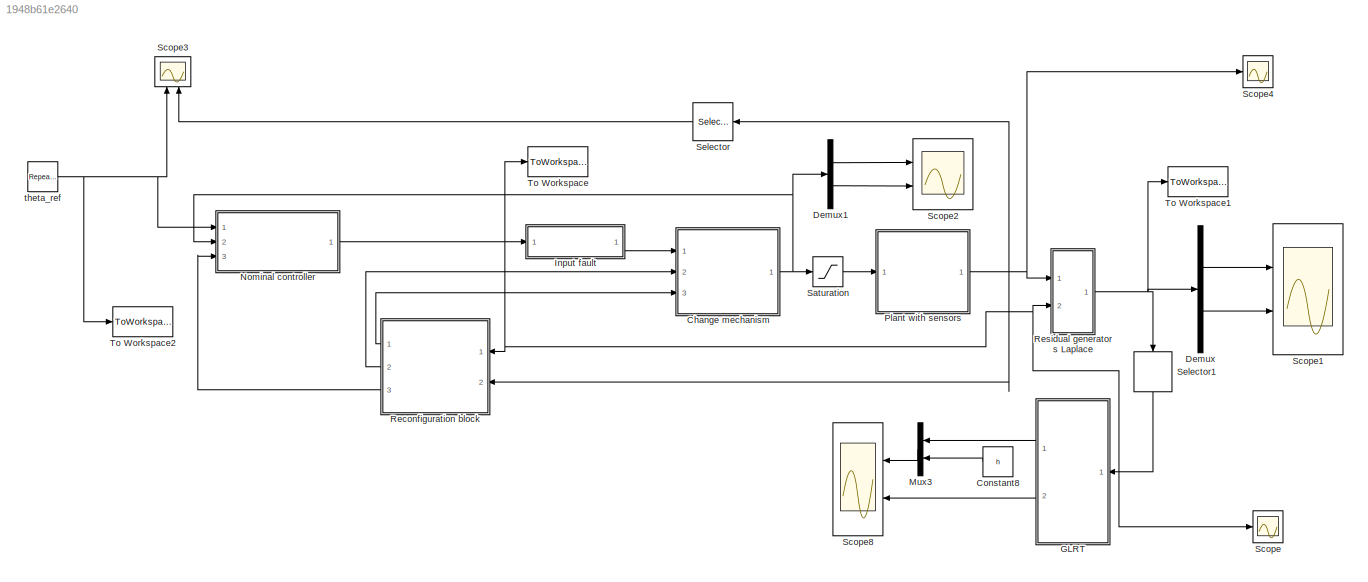
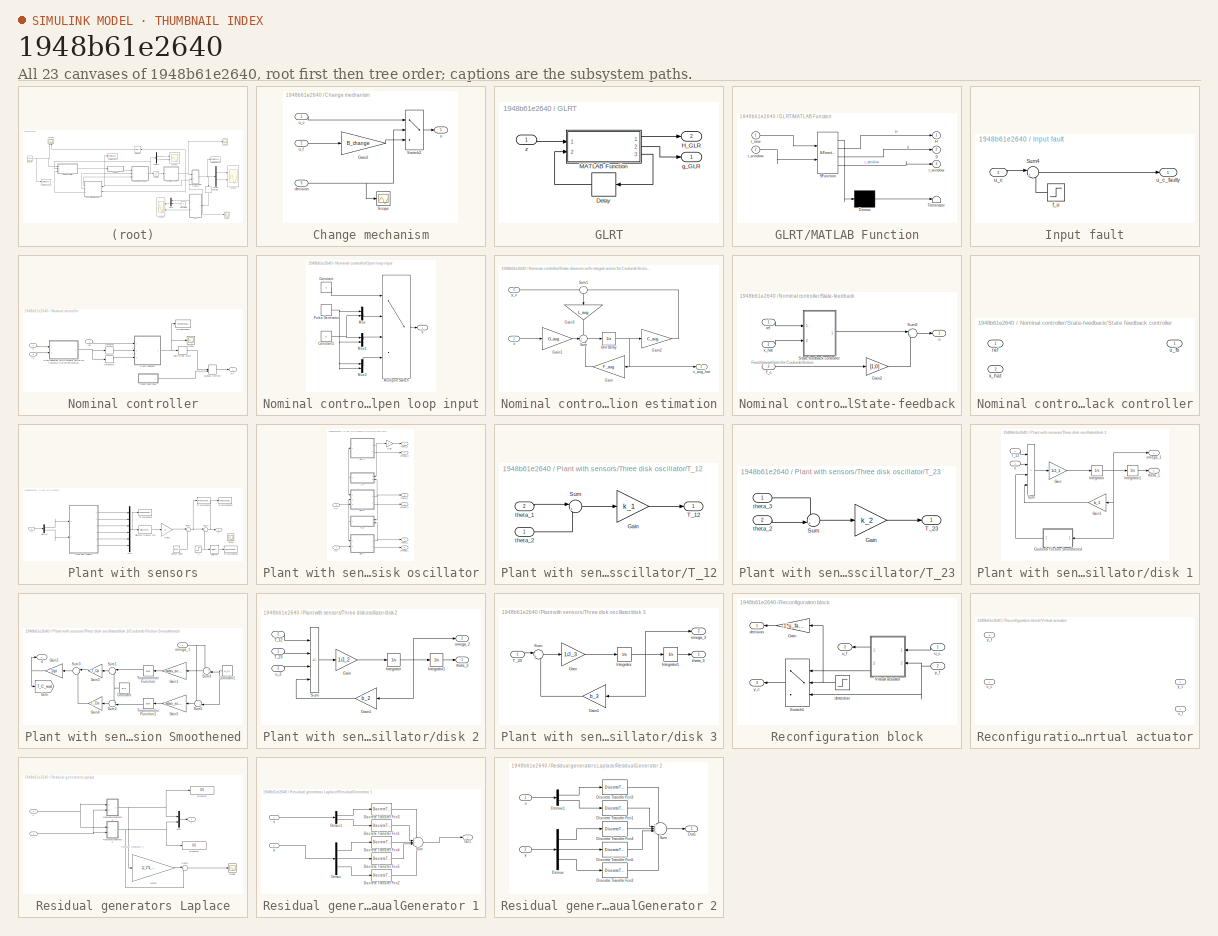
[diagram: thumbnail index - all 23 canvases of the model, root first then tree order]
MODEL slx_1948b61e2640
KIND model
CONFIG AbsTol = auto
CONFIG EnableMultiTasking = off
CONFIG FixedStep = auto
CONFIG MaxStep = auto
CONFIG MinStep = auto
CONFIG RelTol = 1e-8
CONFIG SampleTimeConstraint = Unconstrained
CONFIG Solver = VariableStepAuto
CONFIG SolverName = VariableStepAuto
CONFIG StartTime = 0.0
CONFIG StopTime = simTime
BLOCK [SubSystem] Change mechanism
  Ports = [3, 1]
  RequestExecContextInheritance = off
BLOCK [Gain] Change mechanism/Gain2
  Gain = B_change
  Multiplication = Matrix(K*u) (u vector)
BLOCK [Scope] Change mechanism/Scope
  Floating = off
  NumInputPorts = 1
  Ports = [1]
  ScopeSpecificationString = Simulink.scopes.TimeScopeBlockCfg('CurrentConfiguration', extmgr.ConfigurationSet(extmgr.Configuration('Core','General UI',true),extmgr.Configuration('Core','Source UI',true),extmgr.Configuration('Sources','WiredSimulink',true,'DataLoggingVariableName','ScopeData2'),extmgr.Configuration('Visuals','Time Domain',true,'SerializedDisplays',{struct('MinYLimReal','-1.00000','MaxYLimReal','1.00000','YLab...<+1396ch>
BLOCK [Switch] Change mechanism/Switch2
  InputSameDT = off
  OutDataTypeStr = double
  SaturateOnIntegerOverflow = off
BLOCK [Inport] Change mechanism/decision
  Port = 3
BLOCK [Outport] Change mechanism/u
BLOCK [Inport] Change mechanism/u_c
BLOCK [Inport] Change mechanism/u_f
  Port = 2
BLOCK [Constant] Constant8
  Value = h
BLOCK [Demux] Demux
  Outputs = 2
  Ports = [1, 2]
BLOCK [Demux] Demux1
  Outputs = 2
  Ports = [1, 2]
BLOCK [SubSystem] GLRT
  Ports = [1, 2]
  RequestExecContextInheritance = off
BLOCK [Delay] GLRT/Delay
  DelayLength = 1
  InitialCondition = r_window
  InputPortMap = u0
  NameLocation = top
  Ports = [1, 1]
  SampleTime = T_s
BLOCK [Outport] GLRT/H_GLR
  Port = 2
  VectorParamsAs1DForOutWhenUnconnected = off
BLOCK [SubSystem] GLRT/MATLAB Function
  ErrorFcn = Stateflow.Translate.translate
  PermitHierarchicalResolution = ExplicitOnly
  Ports = [2, 3]
  RequestExecContextInheritance = off
  SFBlockType = MATLAB Function
  TreatAsAtomicUnit = on
BLOCK [Demux] GLRT/MATLAB Function/ Demux 
  Outputs = 1
  Ports = [1, 1]
BLOCK [S-Function] GLRT/MATLAB Function/ SFunction 
  EnableBusSupport = on
  FunctionName = sf_sfun
  PortCounts = [2 4]
  Ports = [2, 4]
  SFcnIsStateOwnerBlock = off
  SFunctionDeploymentMode = off
  Tag = Stateflow S-Function 2
BLOCK [Terminator] GLRT/MATLAB Function/ Terminator 
BLOCK [Outport] GLRT/MATLAB Function/H
BLOCK [Outport] GLRT/MATLAB Function/g
  Port = 2
BLOCK [Inport] GLRT/MATLAB Function/r_new
BLOCK [Outport] GLRT/MATLAB Function/r_window
  Port = 3
BLOCK [Inport] GLRT/MATLAB Function/r_window 
  Port = 2
BLOCK [Outport] GLRT/g_GLR
  VectorParamsAs1DForOutWhenUnconnected = off
BLOCK [Inport] GLRT/z
BLOCK [SubSystem] Input fault
  NameLocation = top
  Ports = [1, 1]
  RequestExecContextInheritance = off
BLOCK [Sum] Input fault/Sum4
  Inputs = |++
  Ports = [2, 1]
BLOCK [Step] Input fault/f_u
  After = f_u
  NameLocation = top
  SampleTime = 0
  Time = f_u_time
BLOCK [Inport] Input fault/u_c
BLOCK [Outport] Input fault/u_c_faulty
BLOCK [Mux] Mux3
  DisplayOption = bar
  Inputs = 2
  Ports = [2, 1]
BLOCK [SubSystem] Nominal controller
  Ports = [3, 1]
  RequestExecContextInheritance = off
BLOCK [ManualSwitch] Nominal controller/Manual Switch
  CurrentSetting = 0
BLOCK [SubSystem] Nominal controller/Open loop input
  Ports = [0, 1]
  RequestExecContextInheritance = off
BLOCK [Constant] Nominal controller/Open loop input/Constant
  Value = 3
BLOCK [Constant] Nominal controller/Open loop input/Constant1
  Value = 0
BLOCK [MultiPortSwitch] Nominal controller/Open loop input/Multiport Switch
  InputSameDT = off
  Ports = [4, 1]
  SaturateOnIntegerOverflow = off
BLOCK [Mux] Nominal controller/Open loop input/Mux
  DisplayOption = bar
  Inputs = 2
  Ports = [2, 1]
BLOCK [Mux] Nominal controller/Open loop input/Mux1
  DisplayOption = bar
  Inputs = 2
  Ports = [2, 1]
BLOCK [Mux] Nominal controller/Open loop input/Mux2
  DisplayOption = bar
  Inputs = 2
  Ports = [2, 1]
BLOCK [DiscretePulseGenerator] Nominal controller/Open loop input/Pulse Generator
  Period = 10
  Ports = [0, 1]
  PulseType = Time based
  PulseWidth = 5
BLOCK [Outport] Nominal controller/Open loop input/u
BLOCK [Scope] Nominal controller/Scope
  Floating = off
  NumInputPorts = 1
  Ports = [1]
  ScopeSpecificationString = Simulink.scopes.TimeScopeBlockCfg('CurrentConfiguration', extmgr.ConfigurationSet(extmgr.Configuration('Core','General UI',true),extmgr.Configuration('Core','Source UI',true),extmgr.Configuration('Sources','WiredSimulink',true,'DataLoggingVariableName','ScopeData1'),extmgr.Configuration('Visuals','Time Domain',true,'SerializedDisplays',{struct('MinYLimReal','-1.51308','MaxYLimReal','1.51292','YLab...<+1479ch>
BLOCK [Selector] Nominal controller/Selector
  IndexOptions = Index vector (dialog)
  Indices = [1:6]
  InputPortWidth = 7
  OutputSizes = 1
  Ports = [1, 1]
BLOCK [Selector] Nominal controller/Selector1
  IndexOptions = Index vector (dialog)
  Indices = [7]
  InputPortWidth = 7
  OutputSizes = 1
  Ports = [1, 1]
BLOCK [SubSystem] Nominal controller/State observer with integral action for Coulomb friction estimation
  Ports = [2, 1]
  RequestExecContextInheritance = off
BLOCK [Gain] Nominal controller/State observer with integral action for Coulomb friction estimation/Gain
  Gain = F_aug
  Multiplication = Matrix(K*u) (u vector)
BLOCK [Gain] Nominal controller/State observer with integral action for Coulomb friction estimation/Gain1
  Gain = G_aug
  Multiplication = Matrix(K*u) (u vector)
BLOCK [Gain] Nominal controller/State observer with integral action for Coulomb friction estimation/Gain2
  Gain = C_aug
  Multiplication = Matrix(K*u) (u vector)
BLOCK [Gain] Nominal controller/State observer with integral action for Coulomb friction estimation/Gain3
  Gain = L_aug
  Multiplication = Matrix(K*u) (u vector)
  NameLocation = left
BLOCK [Sum] Nominal controller/State observer with integral action for Coulomb friction estimation/Sum
  Inputs = +++
  Ports = [3, 1]
BLOCK [Sum] Nominal controller/State observer with integral action for Coulomb friction estimation/Sum1
  Inputs = +-
  NameLocation = left
  Ports = [2, 1]
BLOCK [UnitDelay] Nominal controller/State observer with integral action for Coulomb friction estimation/Unit Delay
  HasFrameUpgradeWarning = on
  SampleTime = T_s
BLOCK [Inport] Nominal controller/State observer with integral action for Coulomb friction estimation/u
BLOCK [Outport] Nominal controller/State observer with integral action for Coulomb friction estimation/x_aug_hat
  VectorParamsAs1DForOutWhenUnconnected = off
BLOCK [Inport] Nominal controller/State observer with integral action for Coulomb friction estimation/y_c
  Port = 2
BLOCK [SubSystem] Nominal controller/State-feedback
  Ports = [3, 1]
  RequestExecContextInheritance = off
BLOCK [Gain] Nominal controller/State-feedback/Gain2
  Gain = [1;0]
  NameLocation = top
BLOCK [SubSystem] Nominal controller/State-feedback/State feedback controller
  Ports = [2, 1]
  RequestExecContextInheritance = off
BLOCK [Inport] Nominal controller/State-feedback/State feedback controller/ref
BLOCK [Outport] Nominal controller/State-feedback/State feedback controller/u_fb
BLOCK [Inport] Nominal controller/State-feedback/State feedback controller/x_hat
  Port = 2
BLOCK [Sum] Nominal controller/State-feedback/Sum2
  Inputs = |+-
  Ports = [2, 1]
BLOCK [Inport] Nominal controller/State-feedback/T_c
  Port = 3
BLOCK [Inport] Nominal controller/State-feedback/ref
BLOCK [Outport] Nominal controller/State-feedback/u
  VectorParamsAs1DForOutWhenUnconnected = off
BLOCK [Inport] Nominal controller/State-feedback/x_hat
  Port = 2
BLOCK [ToWorkspace] Nominal controller/To Workspace
  FixptAsFi = on
  MaxDataPoints = inf
  Ports = [1]
  SampleTime = T_s
  SaveFormat = Timeseries
  VariableName = u
BLOCK [ZeroOrderHold] Nominal controller/Zero-Order Hold
  SampleTime = T_s
BLOCK [Inport] Nominal controller/ref
BLOCK [Inport] Nominal controller/u
  Port = 2
BLOCK [Outport] Nominal controller/u_c
BLOCK [Inport] Nominal controller/y_c
  Port = 3
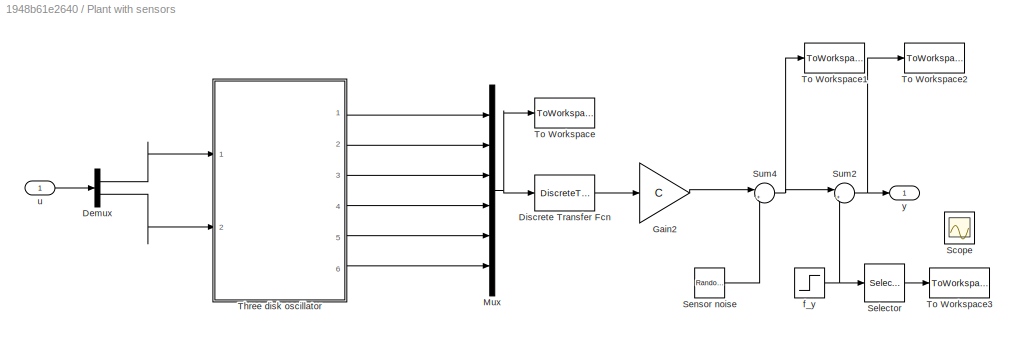
BLOCK [SubSystem] Plant with sensors
  Ports = [1, 1]
  RequestExecContextInheritance = off
BLOCK [Demux] Plant with sensors/Demux
  Outputs = 2
  Ports = [1, 2]
BLOCK [DiscreteTransferFcn] Plant with sensors/Discrete Transfer Fcn
  Denominator = [1]
  InputPortMap = u0
  Ports = [1, 1]
  SampleTime = T_s
BLOCK [Gain] Plant with sensors/Gain2
  Gain = C
  Multiplication = Matrix(K*u) (u vector)
BLOCK [Mux] Plant with sensors/Mux
  DisplayOption = bar
  Inputs = 6
  Ports = [6, 1]
BLOCK [Scope] Plant with sensors/Scope
  Floating = off
  NumInputPorts = 1
  Ports = [1]
  ScopeSpecificationString = Simulink.scopes.TimeScopeBlockCfg('CurrentConfiguration', extmgr.ConfigurationSet(extmgr.Configuration('Core','General UI',true),extmgr.Configuration('Core','Source UI',true),extmgr.Configuration('Sources','WiredSimulink',true,'DataLoggingVariableName','ScopeData1'),extmgr.Configuration('Visuals','Time Domain',true,'SerializedDisplays',{struct('MinYLimReal','-1.00000','MaxYLimReal','1.00000','YLab...<+1403ch>
BLOCK [Selector] Plant with sensors/Selector
  IndexOptions = Index vector (dialog)
  Indices = [2]
  InputPortWidth = 3
  OutputSizes = 1
  Ports = [1, 1]
BLOCK [RandomNumber] Plant with sensors/Sensor noise
  Mean = zeros(3,1)
  SampleTime = T_s
  Variance = diag(sigma_meas^2)
BLOCK [Sum] Plant with sensors/Sum2
  Inputs = |++
  Ports = [2, 1]
BLOCK [Sum] Plant with sensors/Sum4
  Inputs = |++
  Ports = [2, 1]
BLOCK [SubSystem] Plant with sensors/Three disk oscillator
  Ports = [2, 6]
  RequestExecContextInheritance = off
BLOCK [Gain] Plant with sensors/Three disk oscillator/Gain
BLOCK [SubSystem] Plant with sensors/Three disk oscillator/T_12
  Ports = [2, 1]
  RequestExecContextInheritance = off
BLOCK [Gain] Plant with sensors/Three disk oscillator/T_12/Gain
  Gain = k_1
BLOCK [Sum] Plant with sensors/Three disk oscillator/T_12/Sum
  Inputs = |+-
  Ports = [2, 1]
BLOCK [Outport] Plant with sensors/Three disk oscillator/T_12/T_12
  VectorParamsAs1DForOutWhenUnconnected = off
BLOCK [Inport] Plant with sensors/Three disk oscillator/T_12/theta_1
  Port = 2
BLOCK [Inport] Plant with sensors/Three disk oscillator/T_12/theta_2
BLOCK [SubSystem] Plant with sensors/Three disk oscillator/T_23
  Ports = [2, 1]
  RequestExecContextInheritance = off
BLOCK [Gain] Plant with sensors/Three disk oscillator/T_23/Gain
  Gain = k_2
BLOCK [Sum] Plant with sensors/Three disk oscillator/T_23/Sum
  Inputs = -+|
  Ports = [2, 1]
BLOCK [Outport] Plant with sensors/Three disk oscillator/T_23/T_23
  VectorParamsAs1DForOutWhenUnconnected = off
BLOCK [Inport] Plant with sensors/Three disk oscillator/T_23/theta_2
  Port = 2
BLOCK [Inport] Plant with sensors/Three disk oscillator/T_23/theta_3
BLOCK [SubSystem] Plant with sensors/Three disk oscillator/disk 1
  Ports = [2, 2]
  RequestExecContextInheritance = off
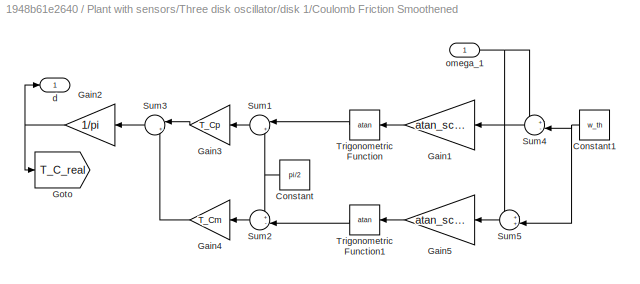
BLOCK [SubSystem] Plant with sensors/Three disk oscillator/disk 1/Coulomb Friction Smoothened
  Ports = [1, 1]
  RequestExecContextInheritance = off
BLOCK [Constant] Plant with sensors/Three disk oscillator/disk 1/Coulomb Friction Smoothened/Constant
  Value = pi/2
BLOCK [Constant] Plant with sensors/Three disk oscillator/disk 1/Coulomb Friction Smoothened/Constant1
  Value = w_th
BLOCK [Gain] Plant with sensors/Three disk oscillator/disk 1/Coulomb Friction Smoothened/Gain1
  Gain = atan_scale
BLOCK [Gain] Plant with sensors/Three disk oscillator/disk 1/Coulomb Friction Smoothened/Gain2
  Gain = 1/pi
BLOCK [Gain] Plant with sensors/Three disk oscillator/disk 1/Coulomb Friction Smoothened/Gain3
  Gain = T_Cp
BLOCK [Gain] Plant with sensors/Three disk oscillator/disk 1/Coulomb Friction Smoothened/Gain4
  Gain = T_Cm
BLOCK [Gain] Plant with sensors/Three disk oscillator/disk 1/Coulomb Friction Smoothened/Gain5
  Gain = atan_scale
BLOCK [Goto] Plant with sensors/Three disk oscillator/disk 1/Coulomb Friction Smoothened/Goto
  GotoTag = T_C_real
  TagVisibility = global
BLOCK [Sum] Plant with sensors/Three disk oscillator/disk 1/Coulomb Friction Smoothened/Sum1
  Inputs = |++
  Ports = [2, 1]
BLOCK [Sum] Plant with sensors/Three disk oscillator/disk 1/Coulomb Friction Smoothened/Sum2
  Inputs = +-|
  Ports = [2, 1]
BLOCK [Sum] Plant with sensors/Three disk oscillator/disk 1/Coulomb Friction Smoothened/Sum3
  Inputs = |+-
  Ports = [2, 1]
BLOCK [Sum] Plant with sensors/Three disk oscillator/disk 1/Coulomb Friction Smoothened/Sum4
  Inputs = +-|
  Ports = [2, 1]
BLOCK [Sum] Plant with sensors/Three disk oscillator/disk 1/Coulomb Friction Smoothened/Sum5
  Inputs = ++|
  Ports = [2, 1]
BLOCK [Trigonometry] Plant with sensors/Three disk oscillator/disk 1/Coulomb Friction Smoothened/Trigonometric Function
  Operator = atan
  Ports = [1, 1]
BLOCK [Trigonometry] Plant with sensors/Three disk oscillator/disk 1/Coulomb Friction Smoothened/Trigonometric Function1
  Operator = atan
  Ports = [1, 1]
BLOCK [Outport] Plant with sensors/Three disk oscillator/disk 1/Coulomb Friction Smoothened/d
  VectorParamsAs1DForOutWhenUnconnected = off
BLOCK [Inport] Plant with sensors/Three disk oscillator/disk 1/Coulomb Friction Smoothened/omega_1
BLOCK [Gain] Plant with sensors/Three disk oscillator/disk 1/Gain
  Gain = 1/J_1
BLOCK [Gain] Plant with sensors/Three disk oscillator/disk 1/Gain1
  Gain = b_1
BLOCK [Integrator] Plant with sensors/Three disk oscillator/disk 1/Integrator
  InitialCondition = x_0(2)
  Ports = [1, 1]
BLOCK [Integrator] Plant with sensors/Three disk oscillator/disk 1/Integrator1
  InitialCondition = x_0(1)
  Ports = [1, 1]
BLOCK [Sum] Plant with sensors/Three disk oscillator/disk 1/Sum
  IconShape = rectangular
  Inputs = -+--
  Ports = [4, 1]
BLOCK [Inport] Plant with sensors/Three disk oscillator/disk 1/T_12
BLOCK [Outport] Plant with sensors/Three disk oscillator/disk 1/omega_1
  Port = 2
  VectorParamsAs1DForOutWhenUnconnected = off
BLOCK [Outport] Plant with sensors/Three disk oscillator/disk 1/theta_1
  VectorParamsAs1DForOutWhenUnconnected = off
BLOCK [Inport] Plant with sensors/Three disk oscillator/disk 1/u
  Port = 2
BLOCK [SubSystem] Plant with sensors/Three disk oscillator/disk 2
  Ports = [3, 2]
  RequestExecContextInheritance = off
BLOCK [Gain] Plant with sensors/Three disk oscillator/disk 2/Gain
  Gain = 1/J_2
BLOCK [Gain] Plant with sensors/Three disk oscillator/disk 2/Gain1
  Gain = b_2
BLOCK [Integrator] Plant with sensors/Three disk oscillator/disk 2/Integrator
  InitialCondition = x_0(4)
  Ports = [1, 1]
BLOCK [Integrator] Plant with sensors/Three disk oscillator/disk 2/Integrator1
  InitialCondition = x_0(3)
  Ports = [1, 1]
BLOCK [Sum] Plant with sensors/Three disk oscillator/disk 2/Sum
  IconShape = rectangular
  Inputs = +-+-
  Ports = [4, 1]
BLOCK [Inport] Plant with sensors/Three disk oscillator/disk 2/T_12
  Port = 2
BLOCK [Inport] Plant with sensors/Three disk oscillator/disk 2/T_23
BLOCK [Outport] Plant with sensors/Three disk oscillator/disk 2/omega_2
  Port = 2
  VectorParamsAs1DForOutWhenUnconnected = off
BLOCK [Outport] Plant with sensors/Three disk oscillator/disk 2/theta_2
  VectorParamsAs1DForOutWhenUnconnected = off
BLOCK [Inport] Plant with sensors/Three disk oscillator/disk 2/u_2
  Port = 3
BLOCK [SubSystem] Plant with sensors/Three disk oscillator/disk 3
  Ports = [1, 2]
  RequestExecContextInheritance = off
BLOCK [Gain] Plant with sensors/Three disk oscillator/disk 3/Gain
  Gain = 1/J_3
BLOCK [Gain] Plant with sensors/Three disk oscillator/disk 3/Gain1
  Gain = b_3
BLOCK [Integrator] Plant with sensors/Three disk oscillator/disk 3/Integrator
  InitialCondition = x_0(6)
  Ports = [1, 1]
BLOCK [Integrator] Plant with sensors/Three disk oscillator/disk 3/Integrator1
  InitialCondition = x_0(5)
  Ports = [1, 1]
BLOCK [Sum] Plant with sensors/Three disk oscillator/disk 3/Sum
  Inputs = |+-
  Ports = [2, 1]
BLOCK [Inport] Plant with sensors/Three disk oscillator/disk 3/T_23
BLOCK [Outport] Plant with sensors/Three disk oscillator/disk 3/omega_3
  Port = 2
  VectorParamsAs1DForOutWhenUnconnected = off
BLOCK [Outport] Plant with sensors/Three disk oscillator/disk 3/theta_3
  VectorParamsAs1DForOutWhenUnconnected = off
BLOCK [Outport] Plant with sensors/Three disk oscillator/omega_1
  Port = 2
  VectorParamsAs1DForOutWhenUnconnected = off
BLOCK [Outport] Plant with sensors/Three disk oscillator/omega_2
  Port = 4
  VectorParamsAs1DForOutWhenUnconnected = off
BLOCK [Outport] Plant with sensors/Three disk oscillator/omega_3
  Port = 6
  VectorParamsAs1DForOutWhenUnconnected = off
BLOCK [Outport] Plant with sensors/Three disk oscillator/theta_1
  VectorParamsAs1DForOutWhenUnconnected = off
BLOCK [Outport] Plant with sensors/Three disk oscillator/theta_2
  Port = 3
  VectorParamsAs1DForOutWhenUnconnected = off
BLOCK [Outport] Plant with sensors/Three disk oscillator/theta_3
  Port = 5
  VectorParamsAs1DForOutWhenUnconnected = off
BLOCK [Inport] Plant with sensors/Three disk oscillator/u_1
BLOCK [Inport] Plant with sensors/Three disk oscillator/u_2
  Port = 2
BLOCK [ToWorkspace] Plant with sensors/To Workspace
  FixptAsFi = on
  MaxDataPoints = inf
  Ports = [1]
  SampleTime = T_s
  SaveFormat = Timeseries
  VariableName = x_real
BLOCK [ToWorkspace] Plant with sensors/To Workspace1
  FixptAsFi = on
  MaxDataPoints = inf
  Ports = [1]
  SampleTime = T_s
  SaveFormat = Timeseries
  VariableName = y_real
BLOCK [ToWorkspace] Plant with sensors/To Workspace2
  FixptAsFi = on
  MaxDataPoints = inf
  Ports = [1]
  SampleTime = T_s
  SaveFormat = Timeseries
  VariableName = y_meas
BLOCK [ToWorkspace] Plant with sensors/To Workspace3
  FixptAsFi = on
  MaxDataPoints = inf
  Ports = [1]
  SampleTime = T_s
  SaveFormat = Timeseries
  VariableName = f_2
BLOCK [Step] Plant with sensors/f_y
  After = f_m
  Before = [0;0;0]
  SampleTime = 0
  Time = f_m_time
BLOCK [Inport] Plant with sensors/u
BLOCK [Outport] Plant with sensors/y
  VectorParamsAs1DForOutWhenUnconnected = off
BLOCK [SubSystem] Reconfiguration block
  Ports = [2, 3]
  RequestExecContextInheritance = off
BLOCK [Gain] Reconfiguration block/Gain
  Gain = -1*u_fault
BLOCK [Switch] Reconfiguration block/Switch1
  InputSameDT = off
  SaturateOnIntegerOverflow = off
  Threshold = 0.98
BLOCK [SubSystem] Reconfiguration block/Virtual actuator
  Ports = [2, 2]
  RequestExecContextInheritance = off
BLOCK [Inport] Reconfiguration block/Virtual actuator/u_c
BLOCK [Outport] Reconfiguration block/Virtual actuator/u_f
  VectorParamsAs1DForOutWhenUnconnected = off
BLOCK [Outport] Reconfiguration block/Virtual actuator/y_c
  Port = 2
  VectorParamsAs1DForOutWhenUnconnected = off
BLOCK [Inport] Reconfiguration block/Virtual actuator/y_f
  Port = 2
BLOCK [Outport] Reconfiguration block/decision
  VectorParamsAs1DForOutWhenUnconnected = off
BLOCK [Step] Reconfiguration block/detection
  SampleTime = T_s
  Time = detect_time
BLOCK [Inport] Reconfiguration block/u_c
BLOCK [Outport] Reconfiguration block/u_f
  NameLocation = top
  Port = 2
  VectorParamsAs1DForOutWhenUnconnected = off
BLOCK [Outport] Reconfiguration block/y_c
  Port = 3
  VectorParamsAs1DForOutWhenUnconnected = off
BLOCK [Inport] Reconfiguration block/y_f
  Port = 2
BLOCK [SubSystem] Residual generators Laplace
  Ports = [2, 1]
  RequestExecContextInheritance = off
BLOCK [Display] Residual generators Laplace/Display1
  Decimation = 1
  Ports = [1]
BLOCK [Display] Residual generators Laplace/Display2
  Decimation = 1
  Ports = [1]
BLOCK [Gain] Residual generators Laplace/Gain3
  Gain = (J_2*k_2)/(J_3*k_1+J_3*k_2)
BLOCK [Mux] Residual generators Laplace/Mux
  DisplayOption = bar
  Inputs = 2
  Ports = [2, 1]
BLOCK [SubSystem] Residual generators Laplace/ResidualGenerator 1
  Ports = [2, 1]
  RequestExecContextInheritance = off
BLOCK [Demux] Residual generators Laplace/ResidualGenerator 1/Demux
  Outputs = 3
  Ports = [1, 3]
BLOCK [Demux] Residual generators Laplace/ResidualGenerator 1/Demux1
  Outputs = 2
  Ports = [1, 2]
BLOCK [DiscreteTransferFcn] Residual generators Laplace/ResidualGenerator 1/Discrete Transfer Fcn1
  Denominator = cell2mat(den1(2))
  InputPortMap = u0
  Numerator = cell2mat(num1(2))
  Ports = [1, 1]
BLOCK [DiscreteTransferFcn] Residual generators Laplace/ResidualGenerator 1/Discrete Transfer Fcn2
  Denominator = cell2mat(den1(5))
  InputPortMap = u0
  Numerator = cell2mat(num1(5))
  Ports = [1, 1]
BLOCK [DiscreteTransferFcn] Residual generators Laplace/ResidualGenerator 1/Discrete Transfer Fcn3
  Denominator = cell2mat(den1(1))
  InputPortMap = u0
  Numerator = cell2mat(num1(1))
  Ports = [1, 1]
BLOCK [DiscreteTransferFcn] Residual generators Laplace/ResidualGenerator 1/Discrete Transfer Fcn4
  Denominator = cell2mat(den1(3))
  InputPortMap = u0
  Numerator = cell2mat(num1(3))
  Ports = [1, 1]
BLOCK [DiscreteTransferFcn] Residual generators Laplace/ResidualGenerator 1/Discrete Transfer Fcn5
  Denominator = cell2mat(den1(4))
  InputPortMap = u0
  Numerator = cell2mat(num1(4))
  Ports = [1, 1]
BLOCK [Outport] Residual generators Laplace/ResidualGenerator 1/Out1
BLOCK [Sum] Residual generators Laplace/ResidualGenerator 1/Sum
  Inputs = +++++
  Ports = [5, 1]
BLOCK [Inport] Residual generators Laplace/ResidualGenerator 1/u
BLOCK [Inport] Residual generators Laplace/ResidualGenerator 1/y
  Port = 2
BLOCK [SubSystem] Residual generators Laplace/ResidualGenerator 2
  Ports = [2, 1]
  RequestExecContextInheritance = off
BLOCK [Demux] Residual generators Laplace/ResidualGenerator 2/Demux
  Outputs = 3
  Ports = [1, 3]
BLOCK [Demux] Residual generators Laplace/ResidualGenerator 2/Demux1
  Outputs = 2
  Ports = [1, 2]
BLOCK [DiscreteTransferFcn] Residual generators Laplace/ResidualGenerator 2/Discrete Transfer Fcn1
  Denominator = cell2mat(den2(2))
  InputPortMap = u0
  Numerator = cell2mat(num2(2))
  Ports = [1, 1]
BLOCK [DiscreteTransferFcn] Residual generators Laplace/ResidualGenerator 2/Discrete Transfer Fcn2
  Denominator = cell2mat(den2(5))
  InputPortMap = u0
  Numerator = cell2mat(num2(5))
  Ports = [1, 1]
BLOCK [DiscreteTransferFcn] Residual generators Laplace/ResidualGenerator 2/Discrete Transfer Fcn3
  Denominator = cell2mat(den2(1))
  InputPortMap = u0
  Numerator = cell2mat(num2(1))
  Ports = [1, 1]
BLOCK [DiscreteTransferFcn] Residual generators Laplace/ResidualGenerator 2/Discrete Transfer Fcn4
  Denominator = cell2mat(den2(3))
  InputPortMap = u0
  Numerator = cell2mat(num2(3))
  Ports = [1, 1]
BLOCK [DiscreteTransferFcn] Residual generators Laplace/ResidualGenerator 2/Discrete Transfer Fcn5
  Denominator = cell2mat(den2(4))
  InputPortMap = u0
  Numerator = cell2mat(num2(4))
  Ports = [1, 1]
BLOCK [Outport] Residual generators Laplace/ResidualGenerator 2/Out1
BLOCK [Sum] Residual generators Laplace/ResidualGenerator 2/Sum
  Inputs = +++++
  Ports = [5, 1]
BLOCK [Inport] Residual generators Laplace/ResidualGenerator 2/u
BLOCK [Inport] Residual generators Laplace/ResidualGenerator 2/y
  Port = 2
BLOCK [Scope] Residual generators Laplace/Scope
  Floating = off
  NumInputPorts = 1
  Ports = [1]
  ScopeSpecificationString = Simulink.scopes.TimeScopeBlockCfg('CurrentConfiguration', extmgr.ConfigurationSet(extmgr.Configuration('Core','General UI',true),extmgr.Configuration('Core','Source UI',true),extmgr.Configuration('Sources','WiredSimulink',true,'DataLoggingVariableName','ScopeData3'),extmgr.Configuration('Visuals','Time Domain',true,'SerializedDisplays',{struct('MinYLimReal','-0.78303','MaxYLimReal','1.01418','YLab...<+1363ch>
BLOCK [Sum] Residual generators Laplace/Sum1
  Inputs = |++
  Ports = [2, 1]
BLOCK [Outport] Residual generators Laplace/r
  VectorParamsAs1DForOutWhenUnconnected = off
BLOCK [Inport] Residual generators Laplace/u
  Port = 2
BLOCK [Inport] Residual generators Laplace/y
BLOCK [Saturate] Saturation
  LowerLimit = -2
  UpperLimit = 2
BLOCK [Scope] Scope
  Floating = off
  NumInputPorts = 1
  Ports = [1]
  ScopeSpecificationString = Simulink.scopes.TimeScopeBlockCfg('CurrentConfiguration', extmgr.ConfigurationSet(extmgr.Configuration('Core','General UI',true),extmgr.Configuration('Core','Source UI',true),extmgr.Configuration('Sources','WiredSimulink',true,'DataLoggingVariableName','ScopeData1'),extmgr.Configuration('Visuals','Time Domain',true,'SerializedDisplays',{struct('MinYLimReal','-0.125','MaxYLimReal','1.125','YLabelRe...<+1417ch>
BLOCK [Scope] Scope1
  Floating = off
  NumInputPorts = 2
  Ports = [2]
  ScopeSpecificationString = Simulink.scopes.TimeScopeBlockCfg('CurrentConfiguration', extmgr.ConfigurationSet(extmgr.Configuration('Core','General UI',true),extmgr.Configuration('Core','Source UI',true),extmgr.Configuration('Sources','WiredSimulink',true,'SampleTime','T_s','DataLoggingVariableName','ScopeData4'),extmgr.Configuration('Visuals','Time Domain',true,'SerializedDisplays',{struct('MinYLimReal','-10.62836','MaxYLimR...<+2324ch>
BLOCK [Scope] Scope2
  Floating = off
  NumInputPorts = 2
  Ports = [2]
  ScopeSpecificationString = Simulink.scopes.TimeScopeBlockCfg('CurrentConfiguration', extmgr.ConfigurationSet(extmgr.Configuration('Core','General UI',true),extmgr.Configuration('Core','Source UI',true),extmgr.Configuration('Sources','WiredSimulink',true,'SampleTime','T_s','DataLoggingVariableName','ScopeData3'),extmgr.Configuration('Visuals','Time Domain',true,'SerializedDisplays',{struct('MinYLimReal','-0.125','MaxYLimReal...<+2313ch>
BLOCK [Scope] Scope3
  Floating = off
  NameLocation = left
  NumInputPorts = 2
  Ports = [2]
  ScopeSpecificationString = Simulink.scopes.TimeScopeBlockCfg('CurrentConfiguration', extmgr.ConfigurationSet(extmgr.Configuration('Core','General UI',true),extmgr.Configuration('Core','Source UI',true),extmgr.Configuration('Sources','WiredSimulink',true,'SampleTime','T_s','DataLoggingVariableName','ScopeData3'),extmgr.Configuration('Visuals','Time Domain',true,'SerializedDisplays',{struct('MinYLimReal','-0.48008','MaxYLimRe...<+1663ch>
BLOCK [Scope] Scope4
  Floating = off
  NumInputPorts = 1
  Ports = [1]
  ScopeSpecificationString = Simulink.scopes.TimeScopeBlockCfg('CurrentConfiguration', extmgr.ConfigurationSet(extmgr.Configuration('Core','General UI',true),extmgr.Configuration('Core','Source UI',true),extmgr.Configuration('Sources','WiredSimulink',true,'DataLoggingVariableName','ScopeData2'),extmgr.Configuration('Visuals','Time Domain',true,'SerializedDisplays',{struct('MinYLimReal','-135.80336','MaxYLimReal','1222.18555',...<+1471ch>
BLOCK [Scope] Scope8
  Floating = off
  NumInputPorts = 2
  Ports = [2]
  ScopeSpecificationString = Simulink.scopes.TimeScopeBlockCfg('CurrentConfiguration', extmgr.ConfigurationSet(extmgr.Configuration('Core','General UI',true),extmgr.Configuration('Core','Source UI',true),extmgr.Configuration('Sources','WiredSimulink',true,'DataLoggingVariableName','ScopeData1'),extmgr.Configuration('Visuals','Time Domain',true,'SerializedDisplays',{struct('MinYLimReal','-162178.59251','MaxYLimReal','1459607.3...<+2144ch>
BLOCK [Selector] Selector
  IndexOptions = Index vector (dialog)
  Indices = [3]
  InputPortWidth = 3
  OutputSizes = 1
  Ports = [1, 1]
BLOCK [Selector] Selector1
  IndexOptions = Index vector (dialog)
  Indices = [2]
  InputPortWidth = 2
  NameLocation = left
  OutputSizes = 1
  Ports = [1, 1]
BLOCK [ToWorkspace] To Workspace
  FixptAsFi = on
  MaxDataPoints = inf
  Ports = [1]
  SampleTime = T_s
  SaveFormat = Timeseries
  VariableName = input_u
BLOCK [ToWorkspace] To Workspace1
  FixptAsFi = on
  MaxDataPoints = inf
  Ports = [1]
  SampleTime = T_s
  SaveFormat = Timeseries
  VariableName = r
BLOCK [ToWorkspace] To Workspace2
  FixptAsFi = on
  MaxDataPoints = inf
  Ports = [1]
  SampleTime = T_s
  SaveFormat = Timeseries
  VariableName = theta_ref
BLOCK [Reference] theta_ref  REF=simulink/Sources/Repeating
Sequence
Stair
  Ports = [0, 1]
  SourceBlock = simulink/Sources/Repeating\nSequence\nStair
  SourceProductBaseCode = SL
  SourceType = Repeating Sequence Stair
ANNOTATION Nominal controller/State-feedback: Feed-forward term for Coulomb friction
ANNOTATION Residual generators Laplace: Residual Generator 3
LINE Change mechanism/Gain2:1 -> Change mechanism/Switch2:3
LINE Change mechanism/Switch2:1 -> Change mechanism/u:1
NET Change mechanism/decision:1 -> Change mechanism/Scope:1, Change mechanism/Switch2:2
LINE Change mechanism/u_c:1 -> Change mechanism/Switch2:1
LINE Change mechanism/u_f:1 -> Change mechanism/Gain2:1
NET Change mechanism:1 -> Demux1:1, Nominal controller:2, Saturation:1
LINE Constant8:1 -> Mux3:2
LINE Demux1:1 -> Scope2:1
LINE Demux1:2 -> Scope2:2
LINE Demux:1 -> Scope1:1
LINE Demux:2 -> Scope1:2
LINE GLRT/Delay:1 -> GLRT/MATLAB Function:2
LINE GLRT/MATLAB Function:1 -> GLRT/H_GLR:1
LINE GLRT/MATLAB Function:2 -> GLRT/g_GLR:1
LINE GLRT/MATLAB Function:3 -> GLRT/Delay:1
LINE GLRT/z:1 -> GLRT/MATLAB Function:1
LINE GLRT:1 -> Mux3:1
LINE GLRT:2 -> Scope8:2
LINE Input fault/Sum4:1 -> Input fault/u_c_faulty:1
LINE Input fault/f_u:1 -> Input fault/Sum4:2
LINE Input fault/u_c:1 -> Input fault/Sum4:1
LINE Input fault:1 -> Change mechanism:1
LINE Mux3:1 -> Scope8:1
LINE Nominal controller/Manual Switch:1 -> Nominal controller/u_c:1
NET Nominal controller/Open loop input/Constant1:1 -> Nominal controller/Open loop input/Mux1:1, Nominal controller/Open loop input/Mux:2
LINE Nominal controller/Open loop input/Constant:1 -> Nominal controller/Open loop input/Multiport Switch:1
LINE Nominal controller/Open loop input/Multiport Switch:1 -> Nominal controller/Open loop input/u:1
LINE Nominal controller/Open loop input/Mux1:1 -> Nominal controller/Open loop input/Multiport Switch:3
LINE Nominal controller/Open loop input/Mux2:1 -> Nominal controller/Open loop input/Multiport Switch:4
LINE Nominal controller/Open loop input/Mux:1 -> Nominal controller/Open loop input/Multiport Switch:2
NET Nominal controller/Open loop input/Pulse Generator:1 -> Nominal controller/Open loop input/Mux1:2, Nominal controller/Open loop input/Mux2:1, Nominal controller/Open loop input/Mux2:2, Nominal controller/Open loop input/Mux:1
LINE Nominal controller/Open loop input:1 -> Nominal controller/Manual Switch:2
LINE Nominal controller/Selector1:1 -> Nominal controller/State-feedback:3
LINE Nominal controller/Selector:1 -> Nominal controller/State-feedback:2
LINE Nominal controller/State observer with integral action for Coulomb friction estimation/Gain1:1 -> Nominal controller/State observer with integral action for Coulomb friction estimation/Sum:2
LINE Nominal controller/State observer with integral action for Coulomb friction estimation/Gain2:1 -> Nominal controller/State observer with integral action for Coulomb friction estimation/Sum1:2
LINE Nominal controller/State observer with integral action for Coulomb friction estimation/Gain3:1 -> Nominal controller/State observer with integral action for Coulomb friction estimation/Sum:1
LINE Nominal controller/State observer with integral action for Coulomb friction estimation/Gain:1 -> Nominal controller/State observer with integral action for Coulomb friction estimation/Sum:3
LINE Nominal controller/State observer with integral action for Coulomb friction estimation/Sum1:1 -> Nominal controller/State observer with integral action for Coulomb friction estimation/Gain3:1
LINE Nominal controller/State observer with integral action for Coulomb friction estimation/Sum:1 -> Nominal controller/State observer with integral action for Coulomb friction estimation/Unit Delay:1
NET Nominal controller/State observer with integral action for Coulomb friction estimation/Unit Delay:1 -> Nominal controller/State observer with integral action for Coulomb friction estimation/Gain2:1, Nominal controller/State observer with integral action for Coulomb friction estimation/Gain:1, Nominal controller/State observer with integral action for Coulomb friction estimation/x_aug_hat:1
LINE Nominal controller/State observer with integral action for Coulomb friction estimation/u:1 -> Nominal controller/State observer with integral action for Coulomb friction estimation/Gain1:1
LINE Nominal controller/State observer with integral action for Coulomb friction estimation/y_c:1 -> Nominal controller/State observer with integral action for Coulomb friction estimation/Sum1:1
NET Nominal controller/State observer with integral action for Coulomb friction estimation:1 -> Nominal controller/Selector1:1, Nominal controller/Selector:1
LINE Nominal controller/State-feedback/Gain2:1 -> Nominal controller/State-feedback/Sum2:2
LINE Nominal controller/State-feedback/State feedback controller:1 -> Nominal controller/State-feedback/Sum2:1
LINE Nominal controller/State-feedback/Sum2:1 -> Nominal controller/State-feedback/u:1
LINE Nominal controller/State-feedback/T_c:1 -> Nominal controller/State-feedback/Gain2:1
LINE Nominal controller/State-feedback/ref:1 -> Nominal controller/State-feedback/State feedback controller:1
LINE Nominal controller/State-feedback/x_hat:1 -> Nominal controller/State-feedback/State feedback controller:2
NET Nominal controller/State-feedback:1 -> Nominal controller/Scope:1, Nominal controller/To Workspace:1, Nominal controller/Zero-Order Hold:1
LINE Nominal controller/Zero-Order Hold:1 -> Nominal controller/Manual Switch:1
LINE Nominal controller/ref:1 -> Nominal controller/State-feedback:1
LINE Nominal controller/u:1 -> Nominal controller/State observer with integral action for Coulomb friction estimation:1
LINE Nominal controller/y_c:1 -> Nominal controller/State observer with integral action for Coulomb friction estimation:2
NET Nominal controller:1 -> Input fault:1, Reconfiguration block:1, Residual generators Laplace:2, Scope:1, To Workspace:1
LINE Plant with sensors/Demux:1 -> Plant with sensors/Three disk oscillator:1
LINE Plant with sensors/Demux:2 -> Plant with sensors/Three disk oscillator:2
LINE Plant with sensors/Discrete Transfer Fcn:1 -> Plant with sensors/Gain2:1
LINE Plant with sensors/Gain2:1 -> Plant with sensors/Sum4:1
NET Plant with sensors/Mux:1 -> Plant with sensors/Discrete Transfer Fcn:1, Plant with sensors/To Workspace:1
LINE Plant with sensors/Selector:1 -> Plant with sensors/To Workspace3:1
LINE Plant with sensors/Sensor noise:1 -> Plant with sensors/Sum4:2
NET Plant with sensors/Sum2:1 -> Plant with sensors/To Workspace2:1, Plant with sensors/y:1
NET Plant with sensors/Sum4:1 -> Plant with sensors/Sum2:1, Plant with sensors/To Workspace1:1
LINE Plant with sensors/Three disk oscillator/Gain:1 -> Plant with sensors/Three disk oscillator/theta_3:1
LINE Plant with sensors/Three disk oscillator/T_12/Gain:1 -> Plant with sensors/Three disk oscillator/T_12/T_12:1
LINE Plant with sensors/Three disk oscillator/T_12/Sum:1 -> Plant with sensors/Three disk oscillator/T_12/Gain:1
LINE Plant with sensors/Three disk oscillator/T_12/theta_1:1 -> Plant with sensors/Three disk oscillator/T_12/Sum:1
LINE Plant with sensors/Three disk oscillator/T_12/theta_2:1 -> Plant with sensors/Three disk oscillator/T_12/Sum:2
NET Plant with sensors/Three disk oscillator/T_12:1 -> Plant with sensors/Three disk oscillator/disk 1:1, Plant with sensors/Three disk oscillator/disk 2:2
LINE Plant with sensors/Three disk oscillator/T_23/Gain:1 -> Plant with sensors/Three disk oscillator/T_23/T_23:1
LINE Plant with sensors/Three disk oscillator/T_23/Sum:1 -> Plant with sensors/Three disk oscillator/T_23/Gain:1
LINE Plant with sensors/Three disk oscillator/T_23/theta_2:1 -> Plant with sensors/Three disk oscillator/T_23/Sum:2
LINE Plant with sensors/Three disk oscillator/T_23/theta_3:1 -> Plant with sensors/Three disk oscillator/T_23/Sum:1
NET Plant with sensors/Three disk oscillator/T_23:1 -> Plant with sensors/Three disk oscillator/disk 2:1, Plant with sensors/Three disk oscillator/disk 3:1
NET Plant with sensors/Three disk oscillator/disk 1/Coulomb Friction Smoothened/Constant1:1 -> Plant with sensors/Three disk oscillator/disk 1/Coulomb Friction Smoothened/Sum4:2, Plant with sensors/Three disk oscillator/disk 1/Coulomb Friction Smoothened/Sum5:2
NET Plant with sensors/Three disk oscillator/disk 1/Coulomb Friction Smoothened/Constant:1 -> Plant with sensors/Three disk oscillator/disk 1/Coulomb Friction Smoothened/Sum1:2, Plant with sensors/Three disk oscillator/disk 1/Coulomb Friction Smoothened/Sum2:1
LINE Plant with sensors/Three disk oscillator/disk 1/Coulomb Friction Smoothened/Gain1:1 -> Plant with sensors/Three disk oscillator/disk 1/Coulomb Friction Smoothened/Trigonometric Function:1
NET Plant with sensors/Three disk oscillator/disk 1/Coulomb Friction Smoothened/Gain2:1 -> Plant with sensors/Three disk oscillator/disk 1/Coulomb Friction Smoothened/Goto:1, Plant with sensors/Three disk oscillator/disk 1/Coulomb Friction Smoothened/d:1
LINE Plant with sensors/Three disk oscillator/disk 1/Coulomb Friction Smoothened/Gain3:1 -> Plant with sensors/Three disk oscillator/disk 1/Coulomb Friction Smoothened/Sum3:1
LINE Plant with sensors/Three disk oscillator/disk 1/Coulomb Friction Smoothened/Gain4:1 -> Plant with sensors/Three disk oscillator/disk 1/Coulomb Friction Smoothened/Sum3:2
LINE Plant with sensors/Three disk oscillator/disk 1/Coulomb Friction Smoothened/Gain5:1 -> Plant with sensors/Three disk oscillator/disk 1/Coulomb Friction Smoothened/Trigonometric Function1:1
LINE Plant with sensors/Three disk oscillator/disk 1/Coulomb Friction Smoothened/Sum1:1 -> Plant with sensors/Three disk oscillator/disk 1/Coulomb Friction Smoothened/Gain3:1
LINE Plant with sensors/Three disk oscillator/disk 1/Coulomb Friction Smoothened/Sum2:1 -> Plant with sensors/Three disk oscillator/disk 1/Coulomb Friction Smoothened/Gain4:1
LINE Plant with sensors/Three disk oscillator/disk 1/Coulomb Friction Smoothened/Sum3:1 -> Plant with sensors/Three disk oscillator/disk 1/Coulomb Friction Smoothened/Gain2:1
LINE Plant with sensors/Three disk oscillator/disk 1/Coulomb Friction Smoothened/Sum4:1 -> Plant with sensors/Three disk oscillator/disk 1/Coulomb Friction Smoothened/Gain1:1
LINE Plant with sensors/Three disk oscillator/disk 1/Coulomb Friction Smoothened/Sum5:1 -> Plant with sensors/Three disk oscillator/disk 1/Coulomb Friction Smoothened/Gain5:1
LINE Plant with sensors/Three disk oscillator/disk 1/Coulomb Friction Smoothened/Trigonometric Function1:1 -> Plant with sensors/Three disk oscillator/disk 1/Coulomb Friction Smoothened/Sum2:2
LINE Plant with sensors/Three disk oscillator/disk 1/Coulomb Friction Smoothened/Trigonometric Function:1 -> Plant with sensors/Three disk oscillator/disk 1/Coulomb Friction Smoothened/Sum1:1
NET Plant with sensors/Three disk oscillator/disk 1/Coulomb Friction Smoothened/omega_1:1 -> Plant with sensors/Three disk oscillator/disk 1/Coulomb Friction Smoothened/Sum4:1, Plant with sensors/Three disk oscillator/disk 1/Coulomb Friction Smoothened/Sum5:1
LINE Plant with sensors/Three disk oscillator/disk 1/Coulomb Friction Smoothened:1 -> Plant with sensors/Three disk oscillator/disk 1/Sum:3
LINE Plant with sensors/Three disk oscillator/disk 1/Gain1:1 -> Plant with sensors/Three disk oscillator/disk 1/Sum:4
LINE Plant with sensors/Three disk oscillator/disk 1/Gain:1 -> Plant with sensors/Three disk oscillator/disk 1/Integrator:1
LINE Plant with sensors/Three disk oscillator/disk 1/Integrator1:1 -> Plant with sensors/Three disk oscillator/disk 1/theta_1:1
NET Plant with sensors/Three disk oscillator/disk 1/Integrator:1 -> Plant with sensors/Three disk oscillator/disk 1/Coulomb Friction Smoothened:1, Plant with sensors/Three disk oscillator/disk 1/Gain1:1, Plant with sensors/Three disk oscillator/disk 1/Integrator1:1, Plant with sensors/Three disk oscillator/disk 1/omega_1:1
LINE Plant with sensors/Three disk oscillator/disk 1/Sum:1 -> Plant with sensors/Three disk oscillator/disk 1/Gain:1
LINE Plant with sensors/Three disk oscillator/disk 1/T_12:1 -> Plant with sensors/Three disk oscillator/disk 1/Sum:1
LINE Plant with sensors/Three disk oscillator/disk 1/u:1 -> Plant with sensors/Three disk oscillator/disk 1/Sum:2
NET Plant with sensors/Three disk oscillator/disk 1:1 -> Plant with sensors/Three disk oscillator/T_12:2, Plant with sensors/Three disk oscillator/theta_1:1
LINE Plant with sensors/Three disk oscillator/disk 1:2 -> Plant with sensors/Three disk oscillator/omega_1:1
LINE Plant with sensors/Three disk oscillator/disk 2/Gain1:1 -> Plant with sensors/Three disk oscillator/disk 2/Sum:4
LINE Plant with sensors/Three disk oscillator/disk 2/Gain:1 -> Plant with sensors/Three disk oscillator/disk 2/Integrator:1
LINE Plant with sensors/Three disk oscillator/disk 2/Integrator1:1 -> Plant with sensors/Three disk oscillator/disk 2/theta_2:1
NET Plant with sensors/Three disk oscillator/disk 2/Integrator:1 -> Plant with sensors/Three disk oscillator/disk 2/Gain1:1, Plant with sensors/Three disk oscillator/disk 2/Integrator1:1, Plant with sensors/Three disk oscillator/disk 2/omega_2:1
LINE Plant with sensors/Three disk oscillator/disk 2/Sum:1 -> Plant with sensors/Three disk oscillator/disk 2/Gain:1
LINE Plant with sensors/Three disk oscillator/disk 2/T_12:1 -> Plant with sensors/Three disk oscillator/disk 2/Sum:1
LINE Plant with sensors/Three disk oscillator/disk 2/T_23:1 -> Plant with sensors/Three disk oscillator/disk 2/Sum:2
LINE Plant with sensors/Three disk oscillator/disk 2/u_2:1 -> Plant with sensors/Three disk oscillator/disk 2/Sum:3
NET Plant with sensors/Three disk oscillator/disk 2:1 -> Plant with sensors/Three disk oscillator/T_12:1, Plant with sensors/Three disk oscillator/T_23:2, Plant with sensors/Three disk oscillator/theta_2:1
LINE Plant with sensors/Three disk oscillator/disk 2:2 -> Plant with sensors/Three disk oscillator/omega_2:1
LINE Plant with sensors/Three disk oscillator/disk 3/Gain1:1 -> Plant with sensors/Three disk oscillator/disk 3/Sum:2
LINE Plant with sensors/Three disk oscillator/disk 3/Gain:1 -> Plant with sensors/Three disk oscillator/disk 3/Integrator:1
LINE Plant with sensors/Three disk oscillator/disk 3/Integrator1:1 -> Plant with sensors/Three disk oscillator/disk 3/theta_3:1
NET Plant with sensors/Three disk oscillator/disk 3/Integrator:1 -> Plant with sensors/Three disk oscillator/disk 3/Gain1:1, Plant with sensors/Three disk oscillator/disk 3/Integrator1:1, Plant with sensors/Three disk oscillator/disk 3/omega_3:1
LINE Plant with sensors/Three disk oscillator/disk 3/Sum:1 -> Plant with sensors/Three disk oscillator/disk 3/Gain:1
LINE Plant with sensors/Three disk oscillator/disk 3/T_23:1 -> Plant with sensors/Three disk oscillator/disk 3/Sum:1
NET Plant with sensors/Three disk oscillator/disk 3:1 -> Plant with sensors/Three disk oscillator/Gain:1, Plant with sensors/Three disk oscillator/T_23:1
LINE Plant with sensors/Three disk oscillator/disk 3:2 -> Plant with sensors/Three disk oscillator/omega_3:1
LINE Plant with sensors/Three disk oscillator/u_1:1 -> Plant with sensors/Three disk oscillator/disk 1:2
LINE Plant with sensors/Three disk oscillator/u_2:1 -> Plant with sensors/Three disk oscillator/disk 2:3
LINE Plant with sensors/Three disk oscillator:1 -> Plant with sensors/Mux:1
LINE Plant with sensors/Three disk oscillator:2 -> Plant with sensors/Mux:2
LINE Plant with sensors/Three disk oscillator:3 -> Plant with sensors/Mux:3
LINE Plant with sensors/Three disk oscillator:4 -> Plant with sensors/Mux:4
LINE Plant with sensors/Three disk oscillator:5 -> Plant with sensors/Mux:5
LINE Plant with sensors/Three disk oscillator:6 -> Plant with sensors/Mux:6
NET Plant with sensors/f_y:1 -> Plant with sensors/Selector:1, Plant with sensors/Sum2:2
LINE Plant with sensors/u:1 -> Plant with sensors/Demux:1
NET Plant with sensors:1 -> Reconfiguration block:2, Residual generators Laplace:1, Scope4:1, Selector:1
LINE Reconfiguration block/Gain:1 -> Reconfiguration block/decision:1
LINE Reconfiguration block/Switch1:1 -> Reconfiguration block/y_c:1
LINE Reconfiguration block/Virtual actuator:1 -> Reconfiguration block/u_f:1
LINE Reconfiguration block/Virtual actuator:2 -> Reconfiguration block/Switch1:1
NET Reconfiguration block/detection:1 -> Reconfiguration block/Gain:1, Reconfiguration block/Switch1:2
LINE Reconfiguration block/u_c:1 -> Reconfiguration block/Virtual actuator:1
NET Reconfiguration block/y_f:1 -> Reconfiguration block/Switch1:3, Reconfiguration block/Virtual actuator:2
LINE Reconfiguration block:1 -> Change mechanism:3
LINE Reconfiguration block:2 -> Change mechanism:2
LINE Reconfiguration block:3 -> Nominal controller:3
LINE Residual generators Laplace/Gain3:1 -> Residual generators Laplace/Sum1:1
LINE Residual generators Laplace/Mux:1 -> Residual generators Laplace/r:1
LINE Residual generators Laplace/ResidualGenerator 1/Demux1:1 -> Residual generators Laplace/ResidualGenerator 1/Discrete Transfer Fcn3:1
LINE Residual generators Laplace/ResidualGenerator 1/Demux1:2 -> Residual generators Laplace/ResidualGenerator 1/Discrete Transfer Fcn1:1
LINE Residual generators Laplace/ResidualGenerator 1/Demux:1 -> Residual generators Laplace/ResidualGenerator 1/Discrete Transfer Fcn4:1
LINE Residual generators Laplace/ResidualGenerator 1/Demux:2 -> Residual generators Laplace/ResidualGenerator 1/Discrete Transfer Fcn5:1
LINE Residual generators Laplace/ResidualGenerator 1/Demux:3 -> Residual generators Laplace/ResidualGenerator 1/Discrete Transfer Fcn2:1
LINE Residual generators Laplace/ResidualGenerator 1/Discrete Transfer Fcn1:1 -> Residual generators Laplace/ResidualGenerator 1/Sum:2
LINE Residual generators Laplace/ResidualGenerator 1/Discrete Transfer Fcn2:1 -> Residual generators Laplace/ResidualGenerator 1/Sum:5
LINE Residual generators Laplace/ResidualGenerator 1/Discrete Transfer Fcn3:1 -> Residual generators Laplace/ResidualGenerator 1/Sum:1
LINE Residual generators Laplace/ResidualGenerator 1/Discrete Transfer Fcn4:1 -> Residual generators Laplace/ResidualGenerator 1/Sum:3
LINE Residual generators Laplace/ResidualGenerator 1/Discrete Transfer Fcn5:1 -> Residual generators Laplace/ResidualGenerator 1/Sum:4
LINE Residual generators Laplace/ResidualGenerator 1/Sum:1 -> Residual generators Laplace/ResidualGenerator 1/Out1:1
LINE Residual generators Laplace/ResidualGenerator 1/u:1 -> Residual generators Laplace/ResidualGenerator 1/Demux1:1
LINE Residual generators Laplace/ResidualGenerator 1/y:1 -> Residual generators Laplace/ResidualGenerator 1/Demux:1
NET Residual generators Laplace/ResidualGenerator 1:1 -> Residual generators Laplace/Display1:1, Residual generators Laplace/Gain3:1, Residual generators Laplace/Mux:1
LINE Residual generators Laplace/ResidualGenerator 2/Demux1:1 -> Residual generators Laplace/ResidualGenerator 2/Discrete Transfer Fcn3:1
LINE Residual generators Laplace/ResidualGenerator 2/Demux1:2 -> Residual generators Laplace/ResidualGenerator 2/Discrete Transfer Fcn1:1
LINE Residual generators Laplace/ResidualGenerator 2/Demux:1 -> Residual generators Laplace/ResidualGenerator 2/Discrete Transfer Fcn4:1
LINE Residual generators Laplace/ResidualGenerator 2/Demux:2 -> Residual generators Laplace/ResidualGenerator 2/Discrete Transfer Fcn5:1
LINE Residual generators Laplace/ResidualGenerator 2/Demux:3 -> Residual generators Laplace/ResidualGenerator 2/Discrete Transfer Fcn2:1
LINE Residual generators Laplace/ResidualGenerator 2/Discrete Transfer Fcn1:1 -> Residual generators Laplace/ResidualGenerator 2/Sum:2
LINE Residual generators Laplace/ResidualGenerator 2/Discrete Transfer Fcn2:1 -> Residual generators Laplace/ResidualGenerator 2/Sum:5
LINE Residual generators Laplace/ResidualGenerator 2/Discrete Transfer Fcn3:1 -> Residual generators Laplace/ResidualGenerator 2/Sum:1
LINE Residual generators Laplace/ResidualGenerator 2/Discrete Transfer Fcn4:1 -> Residual generators Laplace/ResidualGenerator 2/Sum:3
LINE Residual generators Laplace/ResidualGenerator 2/Discrete Transfer Fcn5:1 -> Residual generators Laplace/ResidualGenerator 2/Sum:4
LINE Residual generators Laplace/ResidualGenerator 2/Sum:1 -> Residual generators Laplace/ResidualGenerator 2/Out1:1
LINE Residual generators Laplace/ResidualGenerator 2/u:1 -> Residual generators Laplace/ResidualGenerator 2/Demux1:1
LINE Residual generators Laplace/ResidualGenerator 2/y:1 -> Residual generators Laplace/ResidualGenerator 2/Demux:1
NET Residual generators Laplace/ResidualGenerator 2:1 -> Residual generators Laplace/Display2:1, Residual generators Laplace/Mux:2, Residual generators Laplace/Sum1:2
LINE Residual generators Laplace/Sum1:1 -> Residual generators Laplace/Scope:1
NET Residual generators Laplace/u:1 -> Residual generators Laplace/ResidualGenerator 1:1, Residual generators Laplace/ResidualGenerator 2:1
NET Residual generators Laplace/y:1 -> Residual generators Laplace/ResidualGenerator 1:2, Residual generators Laplace/ResidualGenerator 2:2
NET Residual generators Laplace:1 -> Demux:1, Selector1:1, To Workspace1:1
LINE Saturation:1 -> Plant with sensors:1
LINE Selector1:1 -> GLRT:1
LINE Selector:1 -> Scope3:2
NET theta_ref:1 -> Nominal controller:1, Scope3:1, To Workspace2:1
note: NET lines group one-source signal fan-out (src -> all destinations, sorted); 1:1 wires keep LINE
CHART GLRT/MATLAB Function states=1 transitions=1
  STATE_LABEL 'eML_blk_kernel()'
  STATE_LABEL 'SCRIPT:\nfunction [H, g, r_window] = GLR(r_new, r_window)\n\nsigma = 0.36229693539067544172329302373852;\nmu_0 = 0;\nM = 265;\nh=7.5684;\n\nr_window = [r_window(2:end); r_new];\n\n\n%Using equation 7.35 from the book\n\n%calculating g from a running window.\ng = 1/(2*sigma^2*M)*max(sum(r_window-mu_0))^2;\n\nif (g > h)\n    H = 1;\nelse\n    H = 0;\nend\n\n\n\n\n\n\n\n'
CHART  states=0 transitions=0
